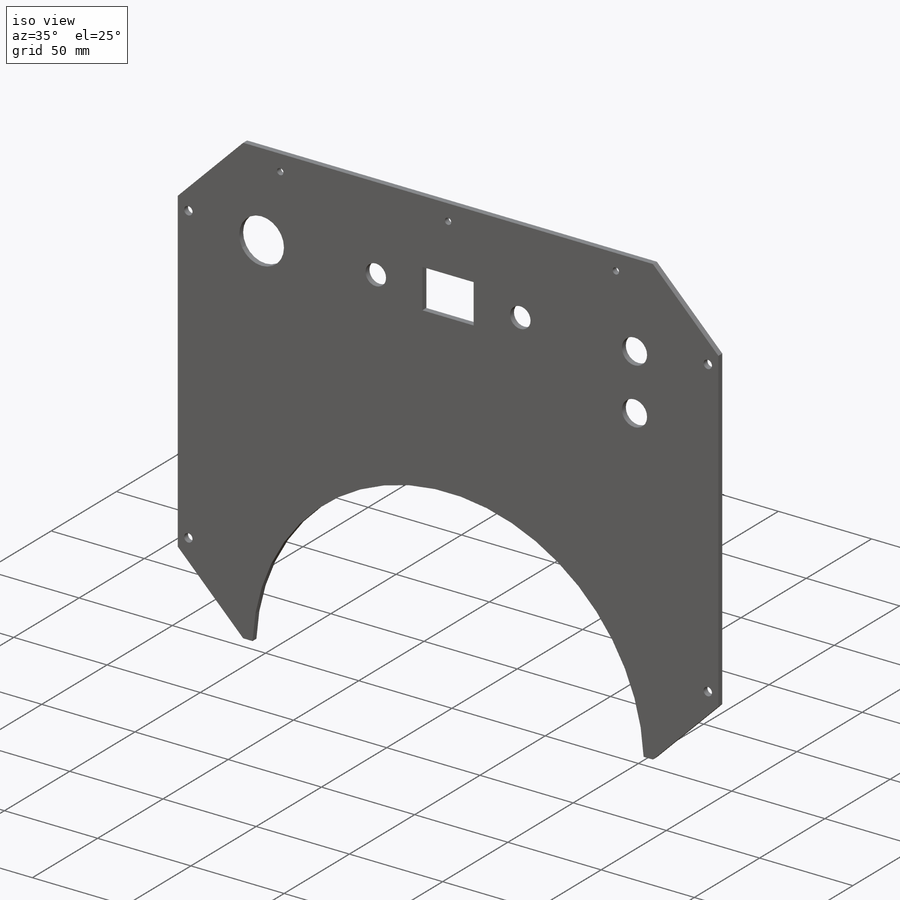
[diagram: iso view]
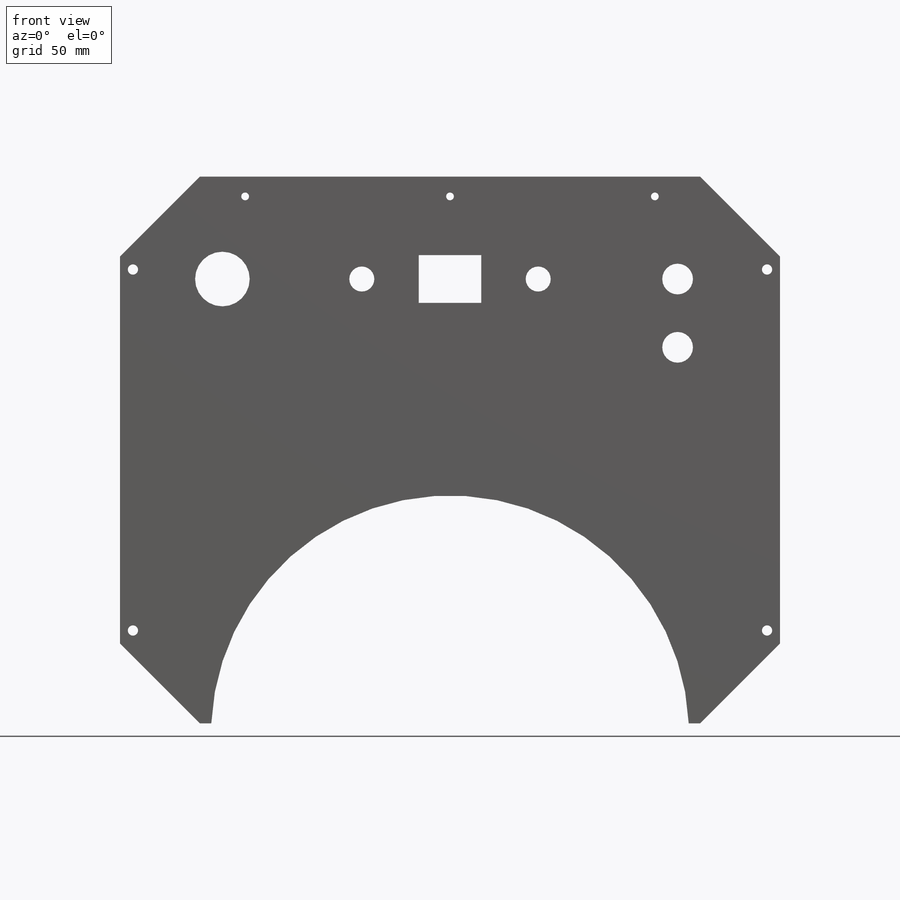
[diagram: front view]
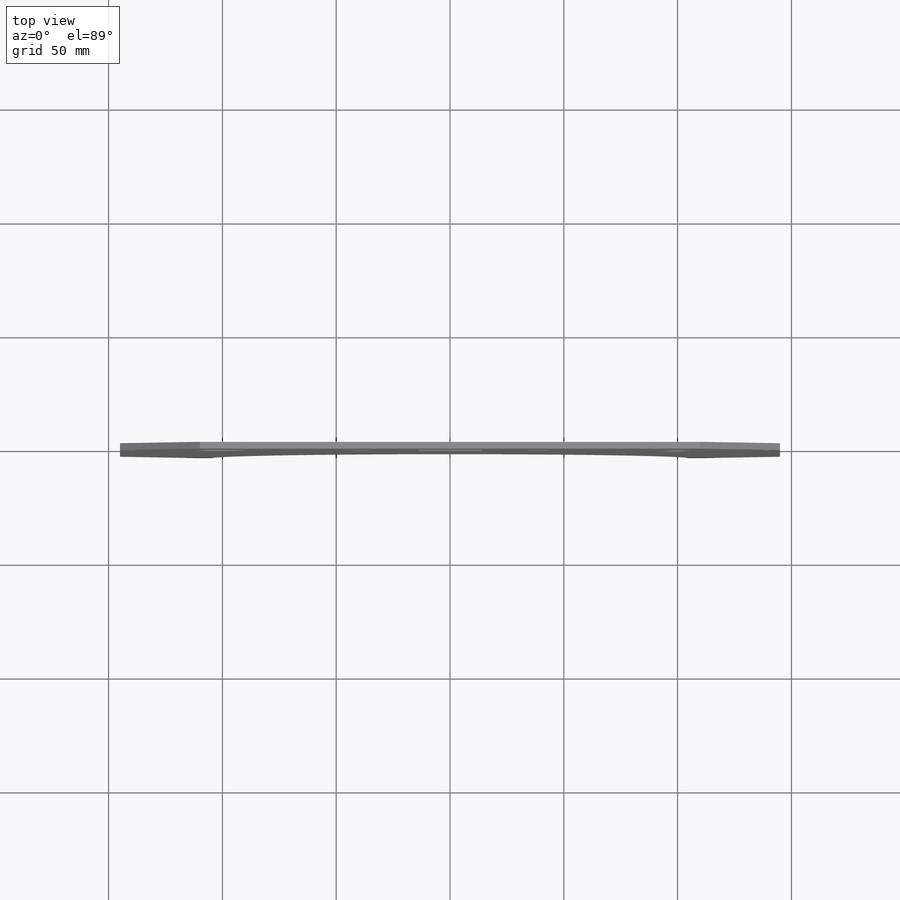
[diagram: top view]
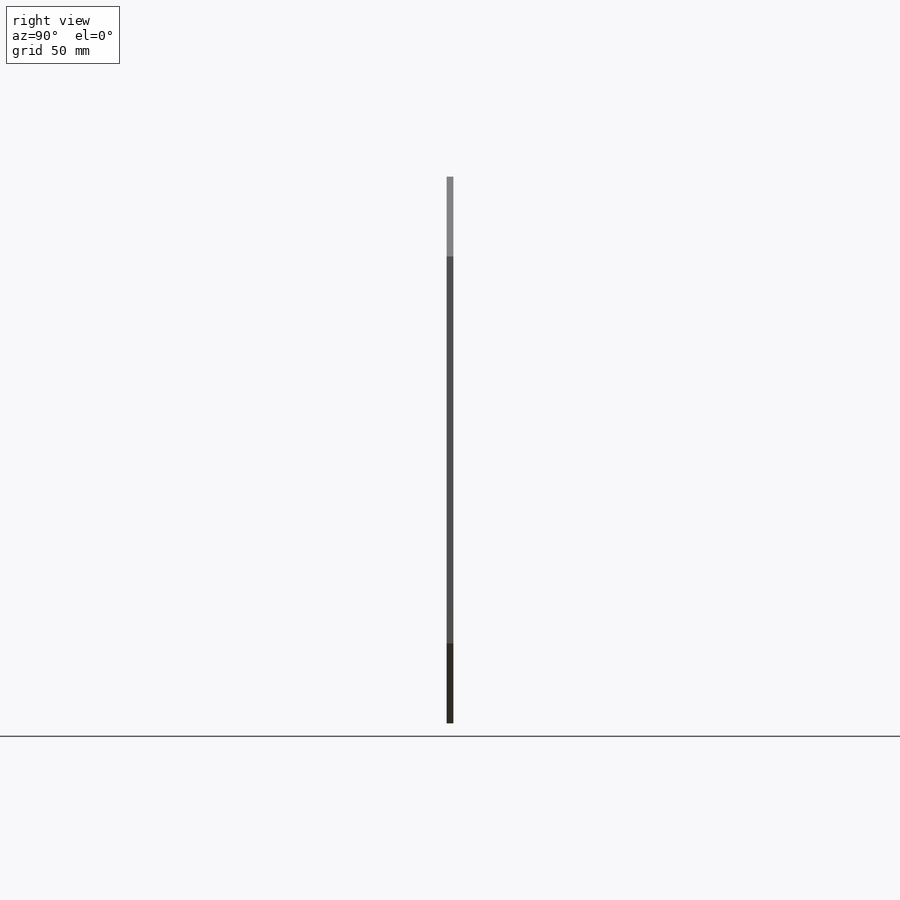
[diagram: right view]
SOLIDWORKS PART (.sldprt)
format: sldprt  version: not decoded by parser v0  size: 472,576 bytes
history: native  units: mm
features: sketch x20, hole x7, plane x3, material x1, extrude x1, cut_extrude x1 (+13 scaffold rows collapsed)
feature tree (46):
  scaffold x13  (default folders/planes/origin — collapsed)
  material  "Matériau <non spécifié>"
  plane  "Plan de face"
  plane  "Plan de dessus"
  plane  "Plan de droite"
  sketch  "Esquisse1"  dims[c1.D3=105.0mm c1.D4=105.0mm c2.D3=105.0mm c2.D8=105.0mm c2.D1=~7.199379mm c2.D2=~7.199379mm c3.D1=290.0mm c3.D2=290.0mm c3.D6=60.0mm c3.D7=60.0mm c3.D11=60.0mm c3.D4=60.0mm c3.D3=250.0mm c3.D5=5.0mm c3.D10=5.0mm c4.D11=~21.922359mm c4.D12=~21.922359mm c4.D4=85.0mm c4.D8=250.0mm c4.D9=75.0mm c5.D11=25.0mm c5.D12=37.5mm c5.D13=47.5mm c5.D14=47.5mm]
  extrude  "Boss.-Extru.1"  Depth=3mm
  sketch  "Esquisse21"  dims[D1=11.4mm D2=11.4mm D3=5.7mm D4=5.7mm]
  hole  "Dégagement M42"  Diameter=4.5mm Depth=10mm
  sketch  "Esquisse25"
  sketch  "Esquisse24"  dims[hole-wizard template sketch: 46 standard entries collapsed; hole parameters kept: c15.Diamètre du perçage=4.5mm c15.Profondeur du perçage=10.0mm c15.D3=~14.816244mm c15.Angle de pointe=118.0deg]
  sketch  "Esquisse26"  dims[c1.D1=45.0mm c1.D2=45.0mm c1.D3=80.0mm c1.D4=80.0mm c1.D5=80.0mm c2.D1=45.0mm c2.D3=30.0mm c2.D4=45.0mm c2.D5=25.0mm c2.D6=25.0mm c2.D7=31.25mm]
  hole  "Dégagement M221"  Diameter=24mm Depth=10mm
  sketch  "Esquisse28"
  sketch  "Esquisse27"  dims[hole-wizard template sketch: 46 standard entries collapsed; hole parameters kept: c15.Diamètre du perçage=24.0mm c15.Profondeur du perçage=10.0mm c15.D3=~14.816244mm c15.Angle de pointe=118.0deg]
  hole  "Dégagement M121"  Diameter=13.5mm Depth=10mm
  sketch  "Esquisse30"  dims[D1=30.0mm]
  sketch  "Esquisse29"  dims[hole-wizard template sketch: 46 standard entries collapsed; hole parameters kept: c15.Diamètre du perçage=13.5mm c15.Profondeur du perçage=10.0mm c15.D3=~14.816244mm c15.Angle de pointe=118.0deg]
  hole  "Dégagement M101"  Diameter=11mm Depth=10mm
  sketch  "Esquisse32"
  sketch  "Esquisse31"  dims[hole-wizard template sketch: 46 standard entries collapsed; hole parameters kept: c15.Diamètre du perçage=11.0mm c15.Profondeur du perçage=10.0mm c15.D3=~14.816244mm c15.Angle de pointe=118.0deg]
  cut_extrude  "Enlèv. mat.-Extru.1"  Depth=10mm
  sketch  "Esquisse33"  dims[D1=8.7mm D2=90.0mm D3=90.0mm]
  hole  "Dégagement M31"  Diameter=3.4mm Depth=3mm
  sketch  "Esquisse35"
  sketch  "Esquisse34"  dims[hole-wizard template sketch: 61 standard entries collapsed; hole parameters above]
  sketch  "Esquisse42"  dims[D1=110.0mm D2=145.0mm D3=80.0mm D4=80.0mm]
  hole  "Dégagement M201"  Diameter=22mm Depth=3mm
  sketch  "Esquisse44"
  sketch  "Esquisse43"  dims[hole-wizard template sketch: 59 standard entries collapsed; hole parameters kept: c18.Diamètre du perçage jusqu'au prochain=22.0mm c18.Profondeur du perçage jusqu'au prochain=3.0mm]
  sketch  "Esquisse47"  dims[D1=40.0mm D2=40.0mm]
  hole  "Dégagement M33"  Diameter=3.4mm Depth=3mm
  sketch  "Esquisse49"
  sketch  "Esquisse48"  dims[hole-wizard template sketch: 61 standard entries collapsed; hole parameters kept: c18.D5=10.0mm c18.D8=60.0mm c18.D9=60.0mm]
decode coverage: 23 of 29 modeling features carry decoded parameters
note: ~ marks probable driven/reference dimensions
summary: Diameter pulled from absorbed wizard sketch
note: suppression state not decoded; provenance and decode notes live in map.json
